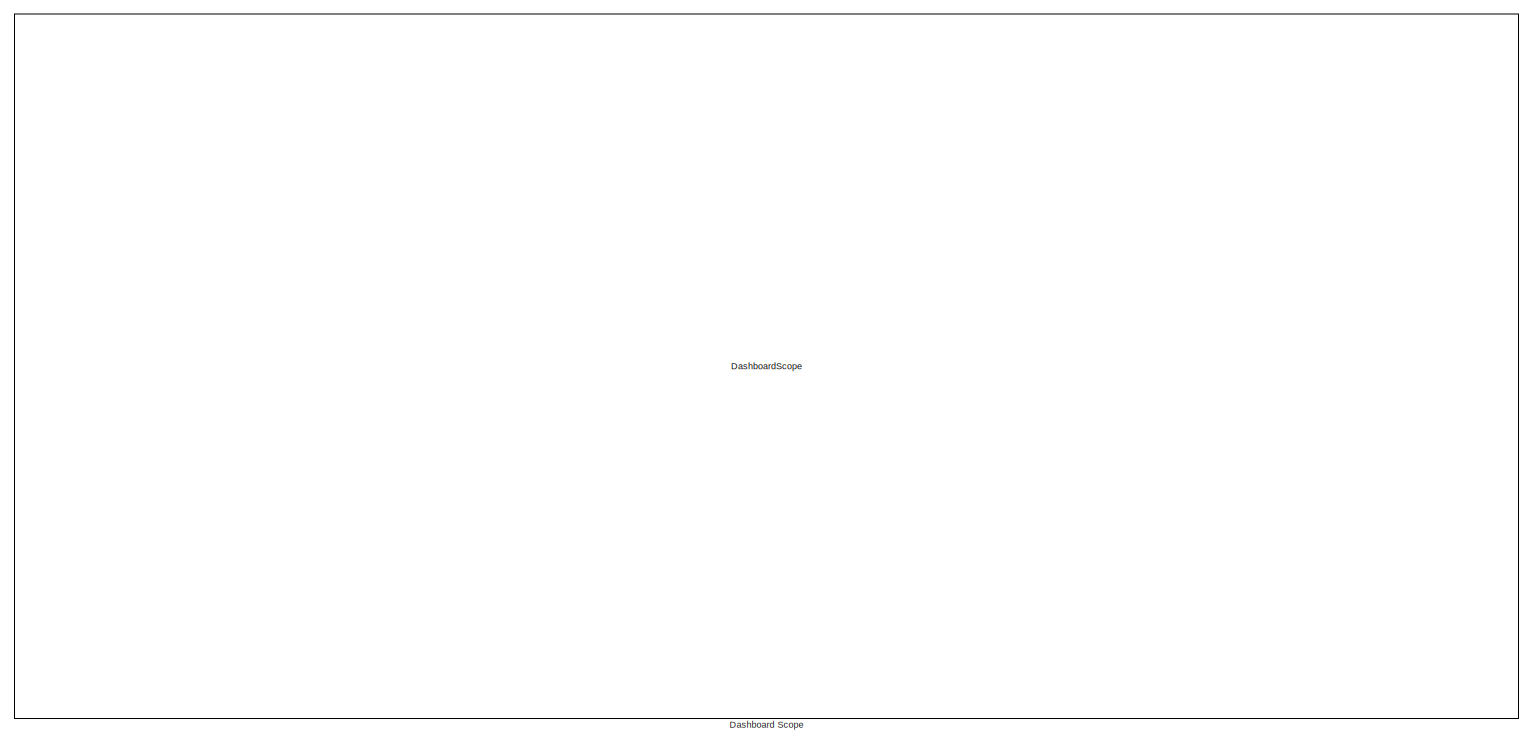
[diagram: root canvas - part 1/4, top right region]
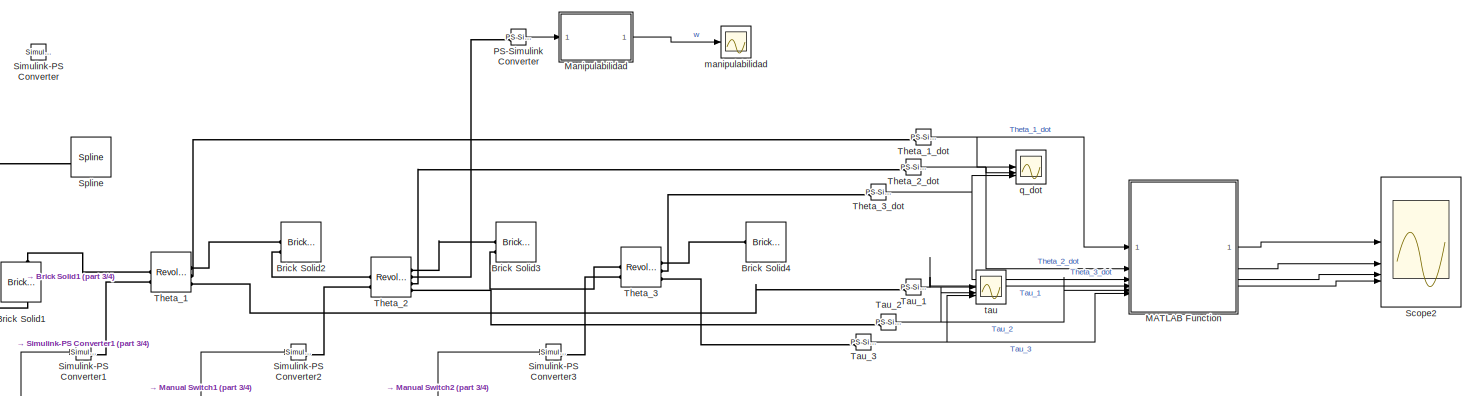
[diagram: root canvas - part 2/4, middle left region]
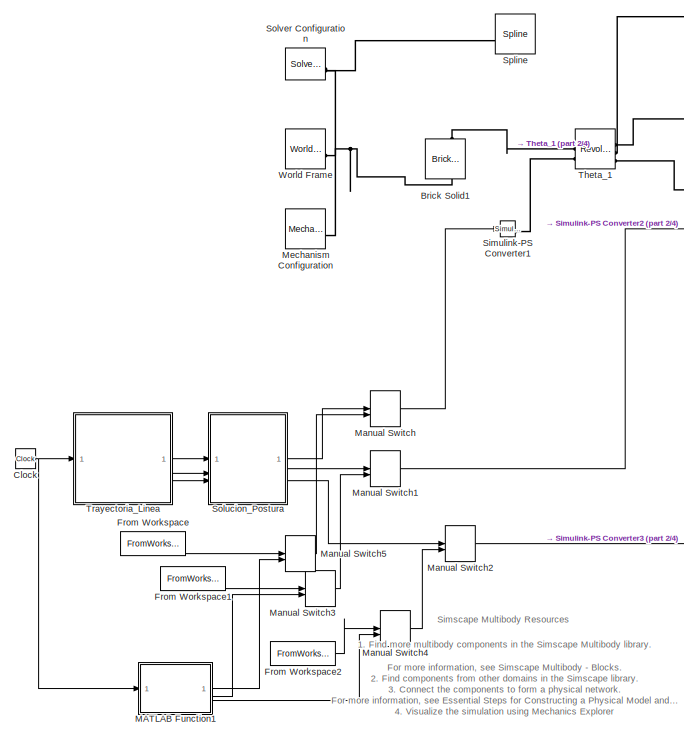
[diagram: root canvas - part 3/4, bottom left region]
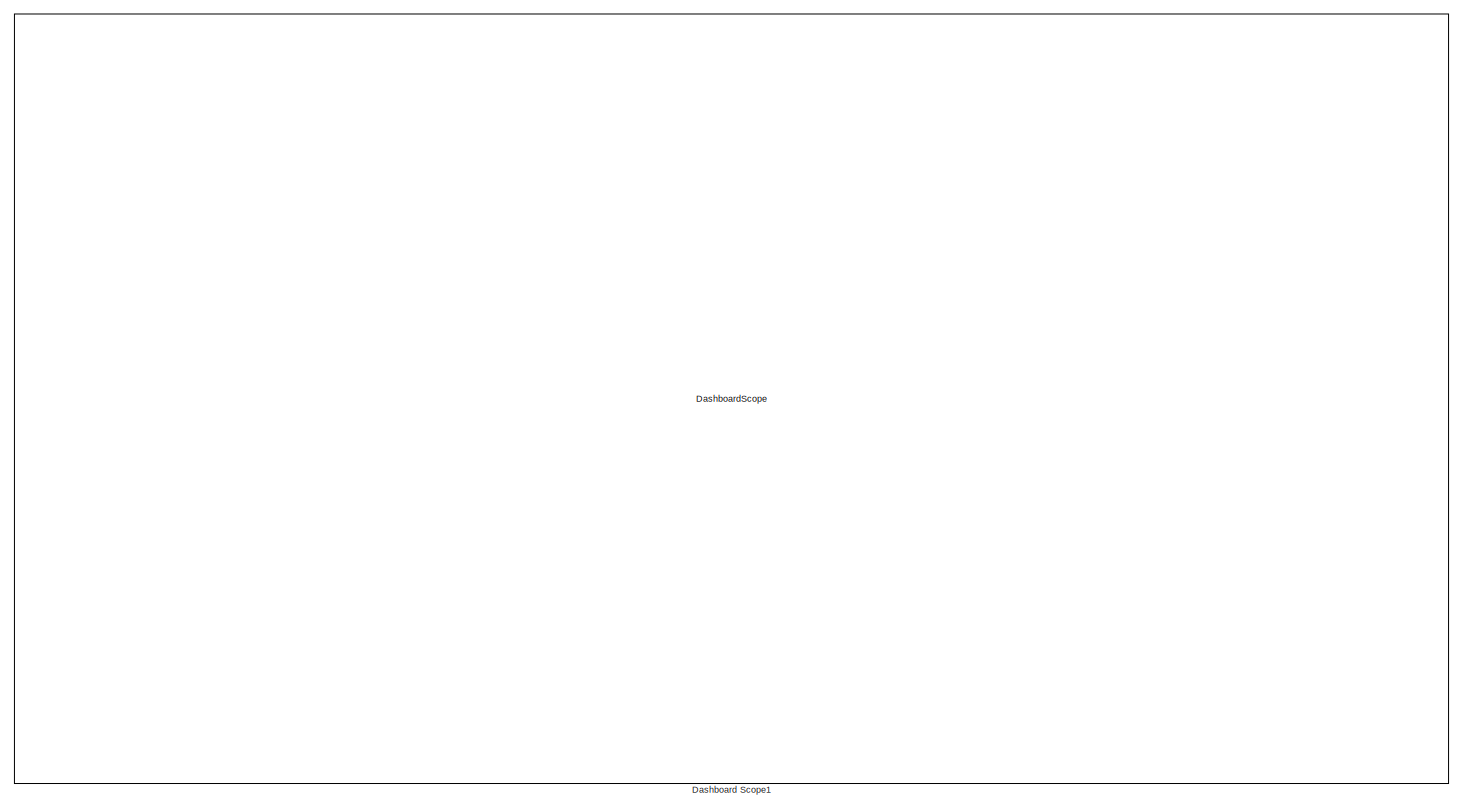
[diagram: root canvas - part 4/4, bottom right region]
MODEL slx_ba8da8ba4038
KIND model
CONFIG AbsTol = 1e-3
CONFIG EnableMultiTasking = on
CONFIG FixedStep = 0.001
CONFIG MaxStep = auto
CONFIG MinStep = auto
CONFIG RelTol = 1e-3
CONFIG SampleTimeConstraint = Unconstrained
CONFIG SolverName = FixedStepAuto
CONFIG StartTime = 0.0
CONFIG StopTime = 10.0
BLOCK [Reference] Brick Solid1  REF=sm_lib/Body Elements/Brick Solid
  SourceBlock = sm_lib/Body Elements/Brick Solid
  SourceType = Brick Solid
BLOCK [Reference] Brick Solid2  REF=sm_lib/Body Elements/Brick Solid
  SourceBlock = sm_lib/Body Elements/Brick Solid
  SourceType = Brick Solid
BLOCK [Reference] Brick Solid3  REF=sm_lib/Body Elements/Brick Solid
  SourceBlock = sm_lib/Body Elements/Brick Solid
  SourceType = Brick Solid
BLOCK [Reference] Brick Solid4  REF=sm_lib/Body Elements/Brick Solid
  SourceBlock = sm_lib/Body Elements/Brick Solid
  SourceType = Brick Solid
BLOCK [Clock] Clock
BLOCK [DashboardScope] Dashboard Scope
BLOCK [DashboardScope] Dashboard Scope1
BLOCK [FromWorkspace] From Workspace
  VariableName = signal_theta1c
BLOCK [FromWorkspace] From Workspace1
  VariableName = signal_theta2c
BLOCK [FromWorkspace] From Workspace2
  VariableName = signal_theta3c
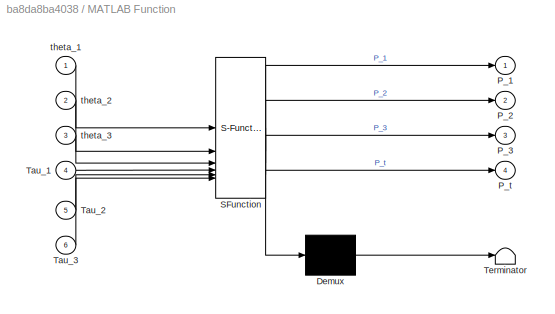
BLOCK [SubSystem] MATLAB Function
  ErrorFcn = Stateflow.Translate.translate
  PermitHierarchicalResolution = ExplicitOnly
  SFBlockType = MATLAB Function
  TreatAsAtomicUnit = on
BLOCK [Demux] MATLAB Function/ Demux 
  Outputs = 1
BLOCK [S-Function] MATLAB Function/ SFunction 
  EnableBusSupport = on
  FunctionName = sf_sfun
  PortCounts = [6 5]
  SFcnIsStateOwnerBlock = off
  SFunctionDeploymentMode = off
  Tag = Stateflow S-Function 4
BLOCK [Terminator] MATLAB Function/ Terminator 
BLOCK [Outport] MATLAB Function/P_1
BLOCK [Outport] MATLAB Function/P_2
  Port = 2
BLOCK [Outport] MATLAB Function/P_3
  Port = 3
BLOCK [Outport] MATLAB Function/P_t
  Port = 4
BLOCK [Inport] MATLAB Function/Tau_1
  Port = 4
BLOCK [Inport] MATLAB Function/Tau_2
  Port = 5
BLOCK [Inport] MATLAB Function/Tau_3
  Port = 6
BLOCK [Inport] MATLAB Function/theta_1
BLOCK [Inport] MATLAB Function/theta_2
  Port = 2
BLOCK [Inport] MATLAB Function/theta_3
  Port = 3
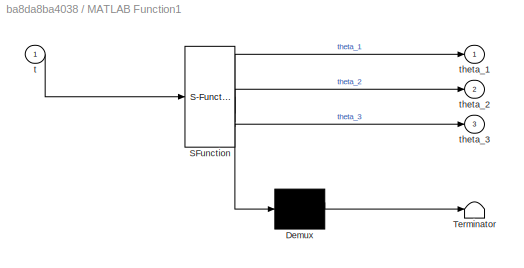
BLOCK [SubSystem] MATLAB Function1
  ErrorFcn = Stateflow.Translate.translate
  PermitHierarchicalResolution = ExplicitOnly
  SFBlockType = MATLAB Function
  TreatAsAtomicUnit = on
BLOCK [Demux] MATLAB Function1/ Demux 
  Outputs = 1
BLOCK [S-Function] MATLAB Function1/ SFunction 
  EnableBusSupport = on
  FunctionName = sf_sfun
  PortCounts = [1 4]
  SFcnIsStateOwnerBlock = off
  SFunctionDeploymentMode = off
  Tag = Stateflow S-Function 5
BLOCK [Terminator] MATLAB Function1/ Terminator 
BLOCK [Inport] MATLAB Function1/t
BLOCK [Outport] MATLAB Function1/theta_1
BLOCK [Outport] MATLAB Function1/theta_2
  Port = 2
BLOCK [Outport] MATLAB Function1/theta_3
  Port = 3
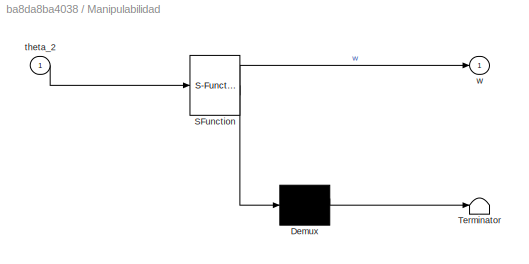
BLOCK [SubSystem] Manipulabilidad
  ErrorFcn = Stateflow.Translate.translate
  PermitHierarchicalResolution = ExplicitOnly
  SFBlockType = MATLAB Function
  TreatAsAtomicUnit = on
BLOCK [Demux] Manipulabilidad/ Demux 
  Outputs = 1
BLOCK [S-Function] Manipulabilidad/ SFunction 
  EnableBusSupport = on
  FunctionName = sf_sfun
  PortCounts = [1 2]
  SFcnIsStateOwnerBlock = off
  SFunctionDeploymentMode = off
  Tag = Stateflow S-Function 3
BLOCK [Terminator] Manipulabilidad/ Terminator 
BLOCK [Inport] Manipulabilidad/theta_2
BLOCK [Outport] Manipulabilidad/w
BLOCK [ManualSwitch] Manual Switch
  CurrentSetting = 0
BLOCK [ManualSwitch] Manual Switch1
  CurrentSetting = 0
BLOCK [ManualSwitch] Manual Switch2
  CurrentSetting = 0
BLOCK [ManualSwitch] Manual Switch3
  CurrentSetting = 0
BLOCK [ManualSwitch] Manual Switch4
  CurrentSetting = 0
BLOCK [ManualSwitch] Manual Switch5
  CurrentSetting = 0
BLOCK [Reference] Mechanism Configuration  REF=sm_lib/Utilities/Mechanism
Configuration
  SourceBlock = sm_lib/Utilities/Mechanism\nConfiguration
  SourceType = Mechanism\nConfiguration
BLOCK [Reference] PS-Simulink Converter  REF=nesl_utility/PS-Simulink
Converter
  SourceBlock = nesl_utility/PS-Simulink\nConverter
  SourceType = PS-Simulink\nConverter
BLOCK [Scope] Scope2
  Floating = off
  NumInputPorts = 4
  ScopeSpecificationString = Simulink.scopes.TimeScopeBlockCfg('CurrentConfiguration', extmgr.ConfigurationSet(extmgr.Configuration('Core','General UI',true),extmgr.Configuration('Core','Source UI',true),extmgr.Configuration('Sources','WiredSimulink',true,'DataLoggingVariableName','ScopeData2'),extmgr.Configuration('Visuals','Time Domain',true,'SerializedDisplays',{struct('MinYLimReal','-28656.42907','MaxYLimReal','257907.861...<+1541ch>
BLOCK [Reference] Simulink-PS Converter  REF=nesl_utility/Simulink-PS
Converter
  SourceBlock = nesl_utility/Simulink-PS\nConverter
  SourceType = Simulink-PS\nConverter
BLOCK [Reference] Simulink-PS Converter1  REF=nesl_utility/Simulink-PS
Converter
  SourceBlock = nesl_utility/Simulink-PS\nConverter
  SourceType = Simulink-PS\nConverter
BLOCK [Reference] Simulink-PS Converter2  REF=nesl_utility/Simulink-PS
Converter
  SourceBlock = nesl_utility/Simulink-PS\nConverter
  SourceType = Simulink-PS\nConverter
BLOCK [Reference] Simulink-PS Converter3  REF=nesl_utility/Simulink-PS
Converter
  SourceBlock = nesl_utility/Simulink-PS\nConverter
  SourceType = Simulink-PS\nConverter
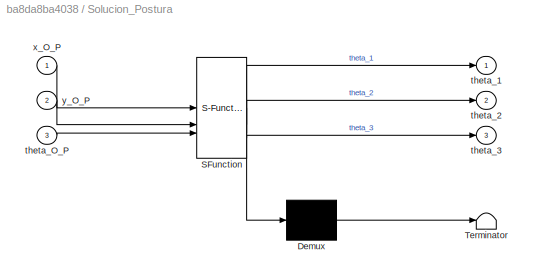
BLOCK [SubSystem] Solucion_Postura
  ErrorFcn = Stateflow.Translate.translate
  PermitHierarchicalResolution = ExplicitOnly
  SFBlockType = MATLAB Function
  TreatAsAtomicUnit = on
BLOCK [Demux] Solucion_Postura/ Demux 
  Outputs = 1
BLOCK [S-Function] Solucion_Postura/ SFunction 
  EnableBusSupport = on
  FunctionName = sf_sfun
  PortCounts = [3 4]
  SFcnIsStateOwnerBlock = off
  SFunctionDeploymentMode = off
  Tag = Stateflow S-Function 1
BLOCK [Terminator] Solucion_Postura/ Terminator 
BLOCK [Outport] Solucion_Postura/theta_1
BLOCK [Outport] Solucion_Postura/theta_2
  Port = 2
BLOCK [Outport] Solucion_Postura/theta_3
  Port = 3
BLOCK [Inport] Solucion_Postura/theta_O_P
  Port = 3
BLOCK [Inport] Solucion_Postura/x_O_P
BLOCK [Inport] Solucion_Postura/y_O_P
  Port = 2
BLOCK [Reference] Solver Configuration  REF=nesl_utility/Solver
Configuration
  SourceBlock = nesl_utility/Solver\nConfiguration
  SourceType = Solver\nConfiguration
BLOCK [Reference] Spline  REF=sm_lib/Curves and Surfaces/Spline
  SourceBlock = sm_lib/Curves and Surfaces/Spline
  SourceType = Spline
BLOCK [Reference] Tau_1  REF=nesl_utility/PS-Simulink
Converter
  SourceBlock = nesl_utility/PS-Simulink\nConverter
  SourceType = PS-Simulink\nConverter
BLOCK [Reference] Tau_2  REF=nesl_utility/PS-Simulink
Converter
  SourceBlock = nesl_utility/PS-Simulink\nConverter
  SourceType = PS-Simulink\nConverter
BLOCK [Reference] Tau_3  REF=nesl_utility/PS-Simulink
Converter
  SourceBlock = nesl_utility/PS-Simulink\nConverter
  SourceType = PS-Simulink\nConverter
BLOCK [Reference] Theta_1  REF=sm_lib/Joints/Revolute Joint
  SourceBlock = sm_lib/Joints/Revolute Joint
  SourceType = Revolute Joint
BLOCK [Reference] Theta_1_dot  REF=nesl_utility/PS-Simulink
Converter
  SourceBlock = nesl_utility/PS-Simulink\nConverter
  SourceType = PS-Simulink\nConverter
BLOCK [Reference] Theta_2  REF=sm_lib/Joints/Revolute Joint
  SourceBlock = sm_lib/Joints/Revolute Joint
  SourceType = Revolute Joint
BLOCK [Reference] Theta_2_dot  REF=nesl_utility/PS-Simulink
Converter
  SourceBlock = nesl_utility/PS-Simulink\nConverter
  SourceType = PS-Simulink\nConverter
BLOCK [Reference] Theta_3  REF=sm_lib/Joints/Revolute Joint
  SourceBlock = sm_lib/Joints/Revolute Joint
  SourceType = Revolute Joint
BLOCK [Reference] Theta_3_dot  REF=nesl_utility/PS-Simulink
Converter
  SourceBlock = nesl_utility/PS-Simulink\nConverter
  SourceType = PS-Simulink\nConverter
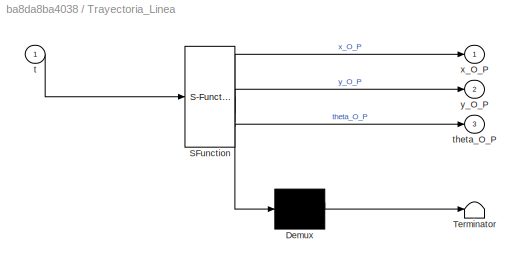
BLOCK [SubSystem] Trayectoria_Linea
  ErrorFcn = Stateflow.Translate.translate
  PermitHierarchicalResolution = ExplicitOnly
  SFBlockType = MATLAB Function
  TreatAsAtomicUnit = on
BLOCK [Demux] Trayectoria_Linea/ Demux 
  Outputs = 1
BLOCK [S-Function] Trayectoria_Linea/ SFunction 
  EnableBusSupport = on
  FunctionName = sf_sfun
  PortCounts = [1 4]
  SFcnIsStateOwnerBlock = off
  SFunctionDeploymentMode = off
  Tag = Stateflow S-Function 2
BLOCK [Terminator] Trayectoria_Linea/ Terminator 
BLOCK [Inport] Trayectoria_Linea/t
BLOCK [Outport] Trayectoria_Linea/theta_O_P
  Port = 3
BLOCK [Outport] Trayectoria_Linea/x_O_P
BLOCK [Outport] Trayectoria_Linea/y_O_P
  Port = 2
BLOCK [Reference] World Frame  REF=sm_lib/Frames and
Transforms/World Frame
  SourceBlock = sm_lib/Frames and\nTransforms/World Frame
  SourceType = World Frame
BLOCK [Scope] manipulabilidad
  Floating = off
  NumInputPorts = 1
  ScopeSpecificationString = Simulink.scopes.TimeScopeBlockCfg('CurrentConfiguration', extmgr.ConfigurationSet(extmgr.Configuration('Core','General UI',true),extmgr.Configuration('Core','Source UI',true),extmgr.Configuration('Sources','WiredSimulink',true,'DataLoggingVariableName','ScopeData1'),extmgr.Configuration('Visuals','Time Domain',true,'SerializedDisplays',{struct('MinYLimReal','-0.96229','MaxYLimReal','-0.34472','YLa...<+1390ch>
BLOCK [Scope] q_dot
  Floating = off
  NumInputPorts = 3
  ScopeSpecificationString = Simulink.scopes.TimeScopeBlockCfg('CurrentConfiguration', extmgr.ConfigurationSet(extmgr.Configuration('Core','General UI',true),extmgr.Configuration('Core','Source UI',true),extmgr.Configuration('Sources','WiredSimulink',true),extmgr.Configuration('Visuals','Time Domain',true,'SerializedDisplays',{struct('MinYLimReal','-0.72037','MaxYLimReal','0.68623','YLabelReal','','MinYLimMag','0.00000','MaxY...<+1482ch>
BLOCK [Scope] tau
  Floating = off
  NumInputPorts = 3
  ScopeSpecificationString = Simulink.scopes.TimeScopeBlockCfg('CurrentConfiguration', extmgr.ConfigurationSet(extmgr.Configuration('Core','General UI',true),extmgr.Configuration('Core','Source UI',true),extmgr.Configuration('Sources','WiredSimulink',true,'DataLoggingVariableName','ScopeData1'),extmgr.Configuration('Visuals','Time Domain',true,'SerializedDisplays',{struct('MinYLimReal','-841226.43663','MaxYLimReal','969590.13...<+1446ch>
ANNOTATION (root): 1. Find more multibody components in the Simscape Multibody library . For more information, see Simscape Multibody - Blocks . 2. Find components from other domains in the Simscape library . 3. Connect the components to form a physical network. For more information, see Essential Steps for Constructing a Physical Model and Creating a Multibody Model . 4. Visualize the simulation using Mechanics Exp...<+52ch>
ANNOTATION (root): Simscape Multibody Resources
NET Clock:1 -> MATLAB Function1:1, Trayectoria_Linea:1
LINE From Workspace1:1 -> Manual Switch3:1
LINE From Workspace2:1 -> Manual Switch4:1
LINE From Workspace:1 -> Manual Switch5:1
LINE MATLAB Function1:1 -> Manual Switch5:2
LINE MATLAB Function1:2 -> Manual Switch3:2
LINE MATLAB Function1:3 -> Manual Switch4:2
LINE MATLAB Function:1 -> Scope2:1
LINE MATLAB Function:2 -> Scope2:2
LINE MATLAB Function:3 -> Scope2:3
LINE MATLAB Function:4 -> Scope2:4
LINE Manipulabilidad:1 -> manipulabilidad:1
LINE Manual Switch1:1 -> Simulink-PS Converter2:1
LINE Manual Switch2:1 -> Simulink-PS Converter3:1
LINE Manual Switch3:1 -> Manual Switch1:2
LINE Manual Switch4:1 -> Manual Switch2:2
LINE Manual Switch5:1 -> Manual Switch:2
LINE Manual Switch:1 -> Simulink-PS Converter1:1
LINE PS-Simulink Converter:1 -> Manipulabilidad:1
LINE Solucion_Postura:1 -> Manual Switch:1
LINE Solucion_Postura:2 -> Manual Switch1:1
LINE Solucion_Postura:3 -> Manual Switch2:1
NET Tau_1:1 -> MATLAB Function:4, tau:1
NET Tau_2:1 -> MATLAB Function:5, tau:2
NET Tau_3:1 -> MATLAB Function:6, tau:3
NET Theta_1_dot:1 -> MATLAB Function:1, q_dot:1
NET Theta_2_dot:1 -> MATLAB Function:2, q_dot:2
NET Theta_3_dot:1 -> MATLAB Function:3, q_dot:3
LINE Trayectoria_Linea:1 -> Solucion_Postura:1
LINE Trayectoria_Linea:2 -> Solucion_Postura:2
LINE Trayectoria_Linea:3 -> Solucion_Postura:3
PNET net1: Brick Solid1:LConn1 -- Mechanism Configuration:RConn1 -- Solver Configuration:RConn1 -- Spline:LConn1 -- World Frame:RConn1
PLINE Brick Solid1:RConn1 -- Theta_1:LConn1
PLINE Brick Solid2:LConn1 -- Theta_1:RConn1
PLINE Brick Solid2:LConn2 -- Theta_2:LConn1
PLINE Brick Solid3:LConn1 -- Theta_2:RConn1
PLINE Brick Solid3:LConn2 -- Theta_3:LConn1
PLINE Brick Solid4:LConn1 -- Theta_3:RConn1
PLINE PS-Simulink Converter:LConn1 -- Theta_2:RConn2
PLINE Simulink-PS Converter1:RConn1 -- Theta_1:LConn2
PLINE Simulink-PS Converter2:RConn1 -- Theta_2:LConn2
PLINE Simulink-PS Converter3:RConn1 -- Theta_3:LConn2
PLINE Tau_1:LConn1 -- Theta_1:RConn3
PLINE Tau_2:LConn1 -- Theta_2:RConn4
PLINE Tau_3:LConn1 -- Theta_3:RConn3
PLINE Theta_1:RConn2 -- Theta_1_dot:LConn1
PLINE Theta_2:RConn3 -- Theta_2_dot:LConn1
PLINE Theta_3:RConn2 -- Theta_3_dot:LConn1
note: NET lines group one-source signal fan-out (src -> all destinations, sorted); 1:1 wires keep LINE; PNET lines group multi-terminal physical nets as a canonical sorted terminal list (undirected conserving connections); 2-terminal nets keep the pairwise PLINE form
CHART Solucion_Postura states=1 transitions=1
  STATE_LABEL 'eML_blk_kernel()'
  STATE_LABEL 'SCRIPT:\nfunction [theta_1,theta_2,theta_3] = fcn(x_O_P,y_O_P,theta_O_P)\n\n%Parametros para el calculo de la solucion\n\nx_O_1 = 0.0; %m\ny_O_1 = 0.1; %m\n\n%Parametros del robot\n\nL_1 = 0.5; %m\nL_2 = 0.5; %m\nL_3 = 0.25; %m\n\n%Calculo de la posición del sistema 3 con respecto al sistema O\n\nx_O_3 = x_O_P - L_3*cos(theta_O_P);\ny_O_3 = y_O_P - L_3*sin(theta_O_P);\n\n%Calculo de la posición del sistema 3 con res...<+408ch>'
CHART Trayectoria_Linea states=1 transitions=1
  STATE_LABEL 'eML_blk_kernel()'
  STATE_LABEL 'SCRIPT:\nfunction [x_O_P,y_O_P,theta_O_P] = fcn(t)\n\n%Parametros del lugar geometrico\nX_O_P_in =0.3;    %m\ny_O_P_in =0.3;    %m\ntheta_O_P_in =0; %rad\n\nX_O_P_fin =0.3;   %m\ny_O_P_fin =-0.3;   %m\ntheta_O_P_fin =pi/6; %rad\n\n%parametro del tiempo\n\nt_total = 10; %s\n\n\nx_O_P = X_O_P_in+((10/t_total^3)*t^3-(15/t_total^4)*t^4+(6/t_total^5)*t^5)*(X_O_P_fin-X_O_P_in);\ny_O_P = y_O_P_in+((10/t_total^3)*t^3-(15/t...<+170ch>'
CHART Manipulabilidad states=1 transitions=1
  STATE_LABEL 'eML_blk_kernel()'
  STATE_LABEL 'SCRIPT:\nfunction w = fcn(theta_2)\nL_1=0.5;\nL_2=0.5;\nw = L_1*L_2*sin(theta_2)/(L_1*L_2);\n'
CHART MATLAB Function states=1 transitions=1
  STATE_LABEL 'eML_blk_kernel()'
  STATE_LABEL 'SCRIPT:\nfunction [P_1,P_2,P_3,P_t] = fcn(theta_1,theta_2,theta_3,Tau_1,Tau_2,Tau_3)\n\nP_1 = abs(theta_1*Tau_1);\nP_2 = abs(theta_2*Tau_2);\nP_3 = abs(theta_3*Tau_3);\nP_t = P_1+P_2+P_3;\n'
CHART MATLAB Function1 states=1 transitions=1
  STATE_LABEL 'eML_blk_kernel()'
  STATE_LABEL 'SCRIPT:\nfunction [theta_1,theta_2,theta_3] = fcn(t)\nt_total =10;\n\ntheta_1_in=2.6890;\ntheta_2_in=-2.723;\ntheta_3_in=0.0373;\n\ntheta_1_fin=-0.4028;\ntheta_2_fin=-2.0206;\ntheta_3_fin=2.9470;\n\ntheta_1=theta_1_in+((10/t_total^3)*t^3-(15/t_total^4)*t^4+(6/t_total^5)*t^5)*(theta_1_fin-theta_1_in);\ntheta_2=theta_2_in+((10/t_total^3)*t^3-(15/t_total^4)*t^4+(6/t_total^5)*t^5)*(theta_2_fin-theta_2_in);\ntheta_3...<+97ch>'
CHART  states=0 transitions=0
CHART  states=0 transitions=0
CHART  states=0 transitions=0
CHART  states=0 transitions=0
CHART  states=0 transitions=0
